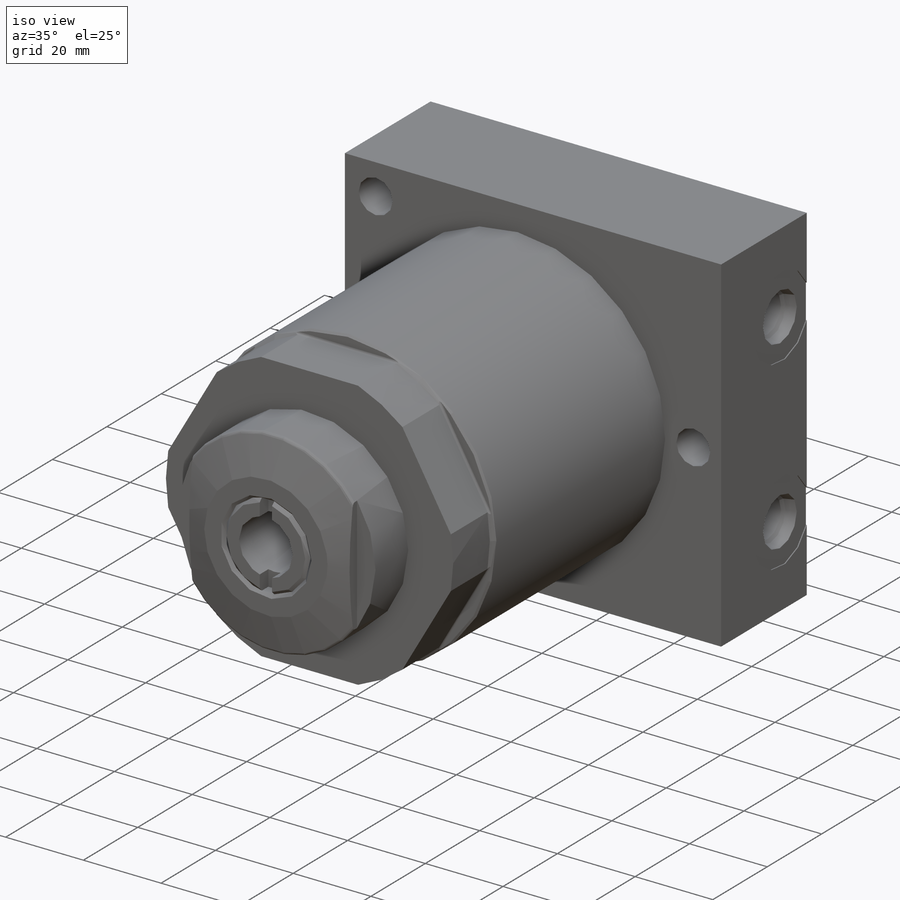
[diagram: iso view]
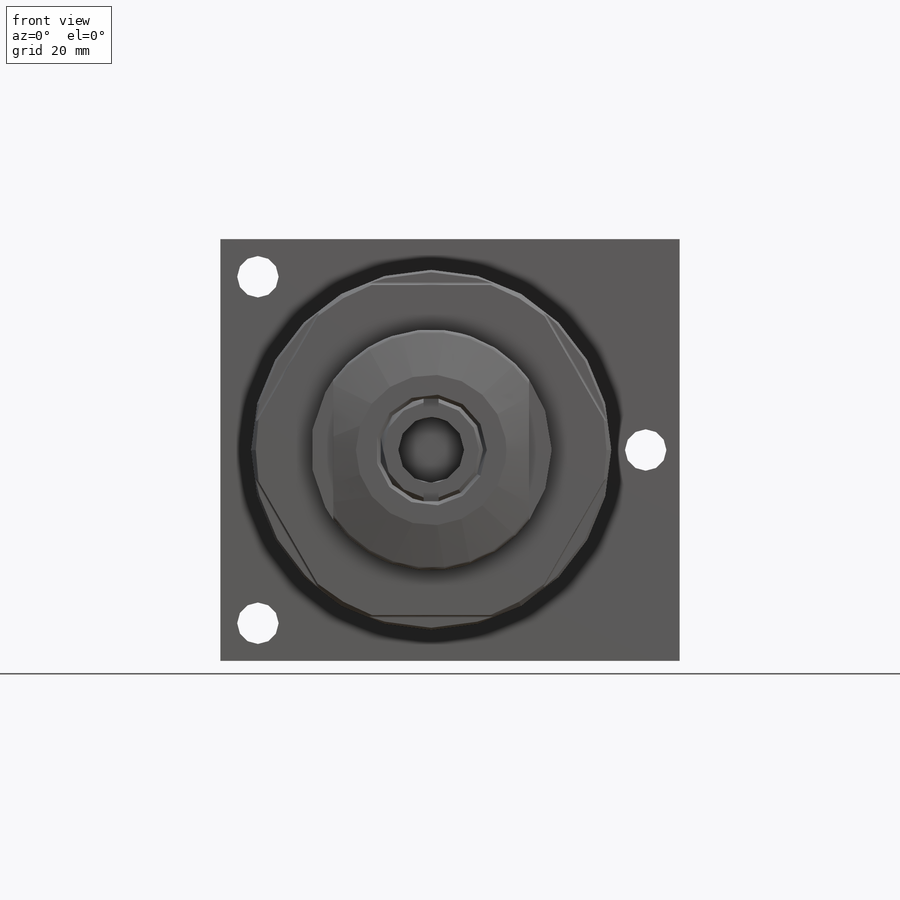
[diagram: front view]
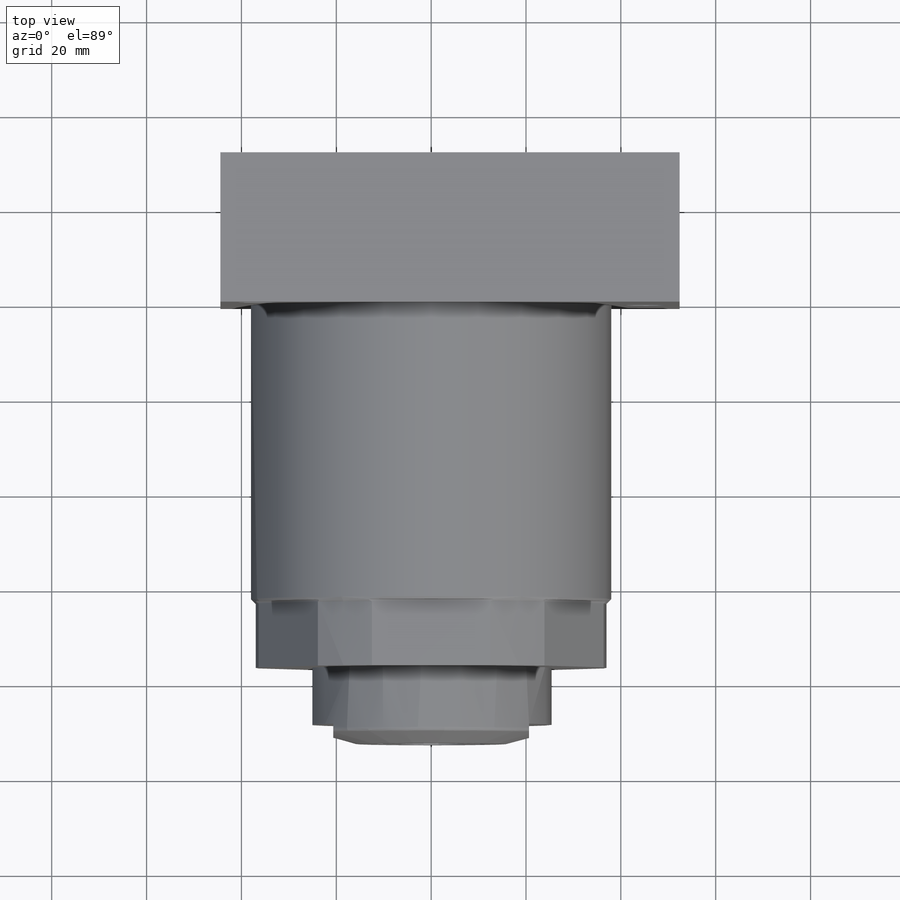
[diagram: top view]
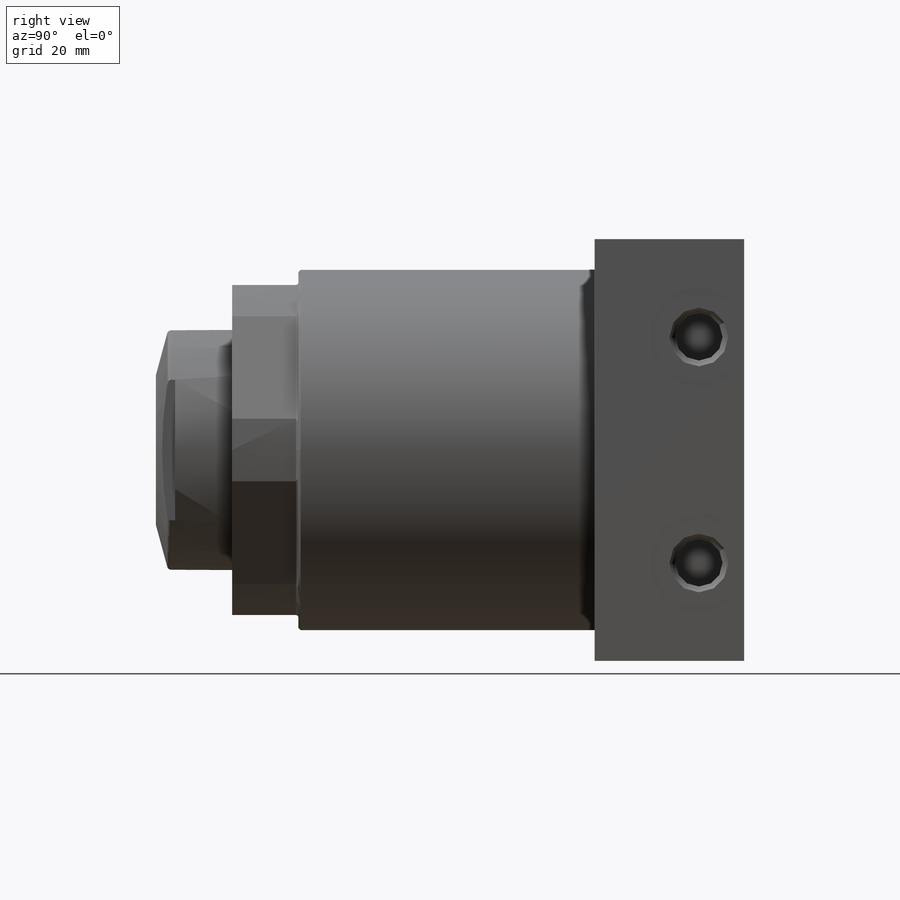
[diagram: right view]
SOLIDWORKS PART (.sldprt)
format: sldprt  version: not decoded by parser v0  size: 373,248 bytes
history: native  units: mm
features: sketch x16, plane x9, cut_revolve x6, cut_extrude x5, extrude x2, material x1, revolve x1, hole x1, pattern_circular x1 (+13 scaffold rows collapsed)
feature tree (55):
  scaffold x13  (default folders/planes/origin — collapsed)
  material  "Alloy Steel"
  plane  "Plane1"
  sketch  "Sketch1"  dims[D1=75.946mm]
  extrude  "Extrude1"  Depth=96.8502mm
  plane  "Plane2"
  sketch  "Sketch2"  dims[D1=0.508mm D2=13.97mm D3=69.596mm]
  cut_extrude  "Cut-Extrude1"  Depth=91.1352mm
  plane  "Plane12"
  sketch  "Sketch10"  dims[c1.D1=73.9394mm c1.D2=13.462mm c1.D3=1.0033mm c2.D3=45.0deg]
  cut_revolve  "Cut-Revolve1"  Angle=360deg
  plane  "Plane15"
  sketch  "Sketch13"  dims[D1=50.8mm D2=16.0528mm]
  revolve  "Revolve1"  Angle=360deg
  plane  "Plane16"
  sketch  "S2D0011"  dims[D1=16.002mm D2=13.8684mm]
  cut_revolve  "Cut-Revolve4"  Angle=360deg
  plane  "Plane17"
  sketch  "Sketch15"  dims[D3=0.8128mm D1=31.75mm D2=3.175mm]
  cut_revolve  "Cut-Revolve5"  Angle=360deg
  plane  "Plane18"
  sketch  "Sketch16"  dims[D1=11.0998mm D2=31.496mm D3=96.8502mm D4=44.45mm]
  extrude  "Extrude2"  Depth=44.45mm
  sketch  "Sketch17"  dims[D3=20.955mm D1=23.8252mm D2=9.525mm]
  cut_extrude  "Cut-Extrude9"  Depth=0.254mm
  sketch  "Sketch18"  dims[D2=20.955mm D1=23.8252mm D3=9.525mm]
  cut_extrude  "Cut-Extrude10"  Depth=0.254mm
  plane  "Plane19"
  sketch  "S2D0002"  dims[D1=17.272mm D2=23.8252mm]
  cut_revolve  "Cut-Revolve6"  Angle=360deg
  plane  "Plane20"
  sketch  "S2D0001"  dims[D1=17.272mm D2=23.8252mm]
  cut_revolve  "Cut-Revolve7"  Angle=360deg
  hole  "Hole1"  Diameter=8.7376mm Depth=31.496mm
  sketch  "Sketch22"  dims[D1=45.2374mm D2=36.5252mm D3=36.5252mm D4=73.0504mm]
  sketch  "Sketch21"  dims[Diameter=8.7376mm Depth=31.496mm]
  pattern_circular  "CirPattern2"  Count=6 Angle=360deg
  sketch  "Sketch23"  dims[D1=41.275mm]
  cut_extrude  "Cut-Extrude11"  Depth=4.0386mm
  sketch  "Sketch24"  dims[c1.D1=0.8128mm c2.D1=45.0deg c2.D2=1.6256mm c2.D3=21.8694mm]
  cut_revolve  "Cut-Revolve8"  Angle=360deg
  sketch  "Sketch25"  dims[D1=10.9347mm D2=3.175mm]
  cut_extrude  "Cut-Extrude12"  Depth=3.175mm
decode coverage: 32 of 32 modeling features carry decoded parameters
note: suppression state not decoded; provenance and decode notes live in map.json
